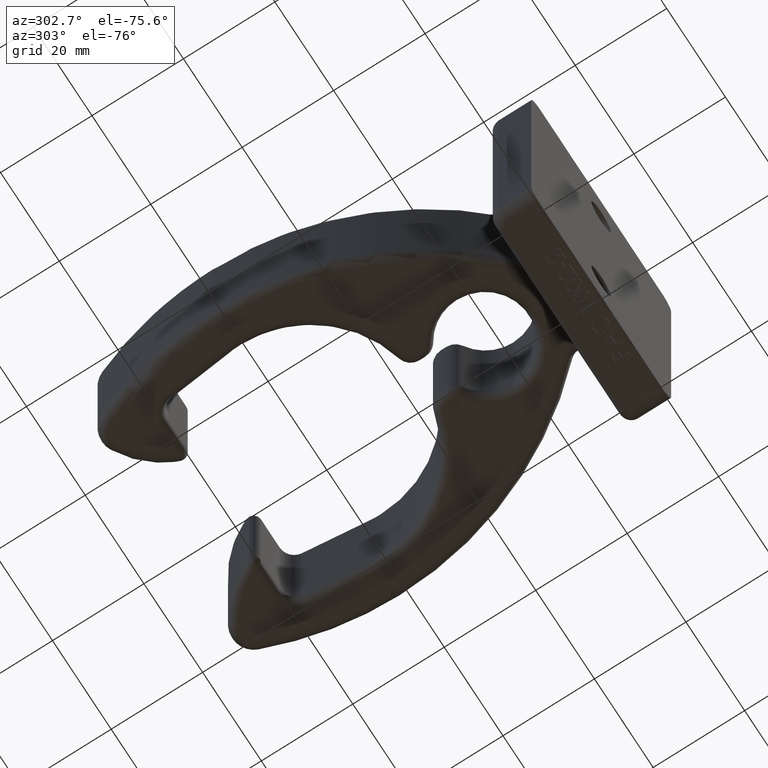
[diagram: clean part render]
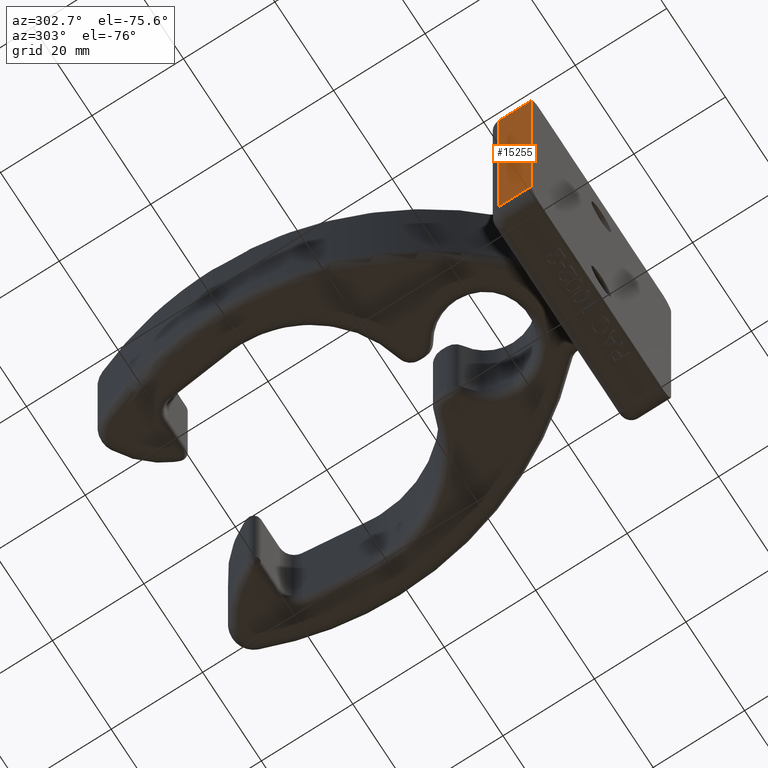
[diagram: same view with one face highlighted and labeled with its STEP entity id]
A machine part, auxiliary view. The second image highlights one B-rep face of the part: STEP entity #15255.
In plain terms, the highlighted planar face has unit normal (1, 0, 0).
Its self-contained STEP definition (entity closure, byte-faithful):
#455 = DIRECTION ( 'NONE',  ( -0.0000000000000000000, -0.0000000000000000000, -1.000000000000000000 ) ) ;
#587 = VERTEX_POINT ( 'NONE', #5006 ) ;
#633 = DIRECTION ( 'NONE',  ( 0.0000000000000000000, 0.0000000000000000000, -1.000000000000000000 ) ) ;
#1055 = DIRECTION ( 'NONE',  ( 0.0000000000000000000, 0.0000000000000000000, -1.000000000000000000 ) ) ;
#1741 = ORIENTED_EDGE ( 'NONE', *, *, #1755, .T. ) ;
#1755 = EDGE_CURVE ( 'NONE', #5696, #16301, #4055, .T. ) ;
#1805 = EDGE_LOOP ( 'NONE', ( #1741, #5092, #11876, #11150 ) ) ;
#2225 = VERTEX_POINT ( 'NONE', #6408 ) ;
#3256 = CARTESIAN_POINT ( 'NONE',  ( -0.9375000000000000000, 0.2812499999999999400, 1.250000000000000000 ) ) ;
#4055 = LINE ( 'NONE', #14079, #7036 ) ;
#4101 = VECTOR ( 'NONE', #633, 39.37007874015748100 ) ;
#4373 = CARTESIAN_POINT ( 'NONE',  ( -0.9375000000000000000, 0.0000000000000000000, 0.6875000000000000000 ) ) ;
#5006 = CARTESIAN_POINT ( 'NONE',  ( -0.9375000000000000000, 0.2812499999999999400, -1.250000000000000000 ) ) ;
#5092 = ORIENTED_EDGE ( 'NONE', *, *, #5358, .T. ) ;
#5358 = EDGE_CURVE ( 'NONE', #16301, #587, #7456, .T. ) ;
#5501 = DIRECTION ( 'NONE',  ( -0.0000000000000000000, -1.000000000000000000, -0.0000000000000000000 ) ) ;
#5696 = VERTEX_POINT ( 'NONE', #7289 ) ;
#6408 = CARTESIAN_POINT ( 'NONE',  ( -0.9375000000000000000, 0.0000000000000000000, -1.250000000000000000 ) ) ;
#7036 = VECTOR ( 'NONE', #7829, 39.37007874015748100 ) ;
#7289 = CARTESIAN_POINT ( 'NONE',  ( -0.9375000000000000000, 0.0000000000000000000, 1.250000000000000000 ) ) ;
#7456 = LINE ( 'NONE', #15716, #4101 ) ;
#7829 = DIRECTION ( 'NONE',  ( -0.0000000000000000000, 1.000000000000000000, -0.0000000000000000000 ) ) ;
#8577 = DIRECTION ( 'NONE',  ( 1.000000000000000000, 0.0000000000000000000, 0.0000000000000000000 ) ) ;
#8922 = EDGE_CURVE ( 'NONE', #587, #2225, #11724, .T. ) ;
#9684 = FACE_OUTER_BOUND ( 'NONE', #1805, .T. ) ;
#9952 = VECTOR ( 'NONE', #455, 39.37007874015748100 ) ;
#11150 = ORIENTED_EDGE ( 'NONE', *, *, #13032, .F. ) ;
#11724 = LINE ( 'NONE', #14516, #12119 ) ;
#11876 = ORIENTED_EDGE ( 'NONE', *, *, #8922, .T. ) ;
#12119 = VECTOR ( 'NONE', #5501, 39.37007874015748100 ) ;
#12901 = LINE ( 'NONE', #4373, #9952 ) ;
#13032 = EDGE_CURVE ( 'NONE', #5696, #2225, #12901, .T. ) ;
#13563 = AXIS2_PLACEMENT_3D ( 'NONE', #16132, #8577, #1055 ) ;
#14079 = CARTESIAN_POINT ( 'NONE',  ( -0.9375000000000000000, 0.3749999999999999400, 1.250000000000000000 ) ) ;
#14516 = CARTESIAN_POINT ( 'NONE',  ( -0.9375000000000000000, 0.0000000000000000000, -1.250000000000000000 ) ) ;
#14753 = PLANE ( 'NONE',  #13563 ) ;
#15255 = ADVANCED_FACE ( 'NONE', ( #9684 ), #14753, .F. ) ;
#15716 = CARTESIAN_POINT ( 'NONE',  ( -0.9375000000000000000, 0.2812499999999999400, 0.6875000000000000000 ) ) ;
#16132 = CARTESIAN_POINT ( 'NONE',  ( -0.9375000000000000000, 0.0000000000000000000, 0.6875000000000000000 ) ) ;
#16301 = VERTEX_POINT ( 'NONE', #3256 ) ;